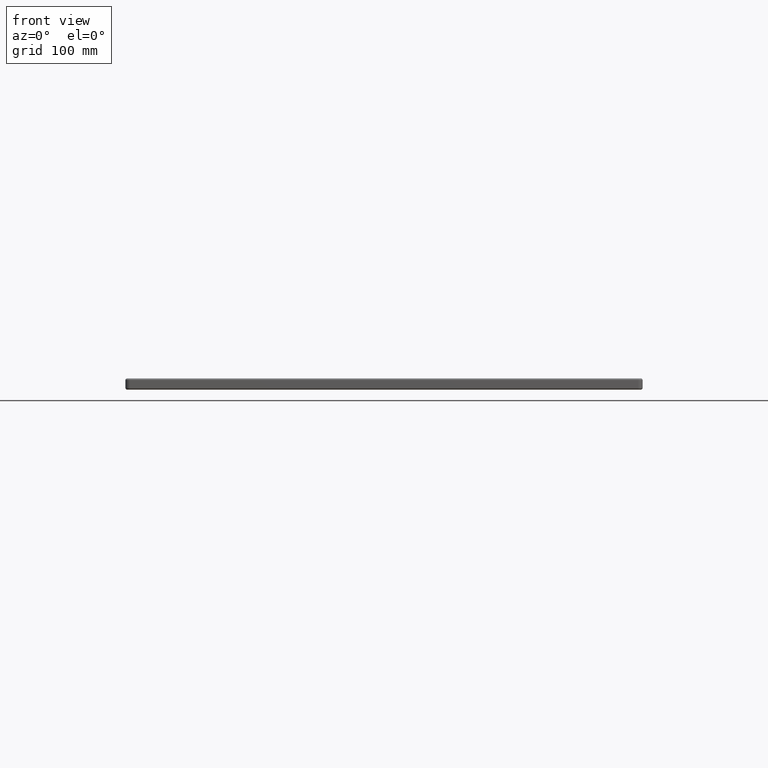
[diagram: clean part render]
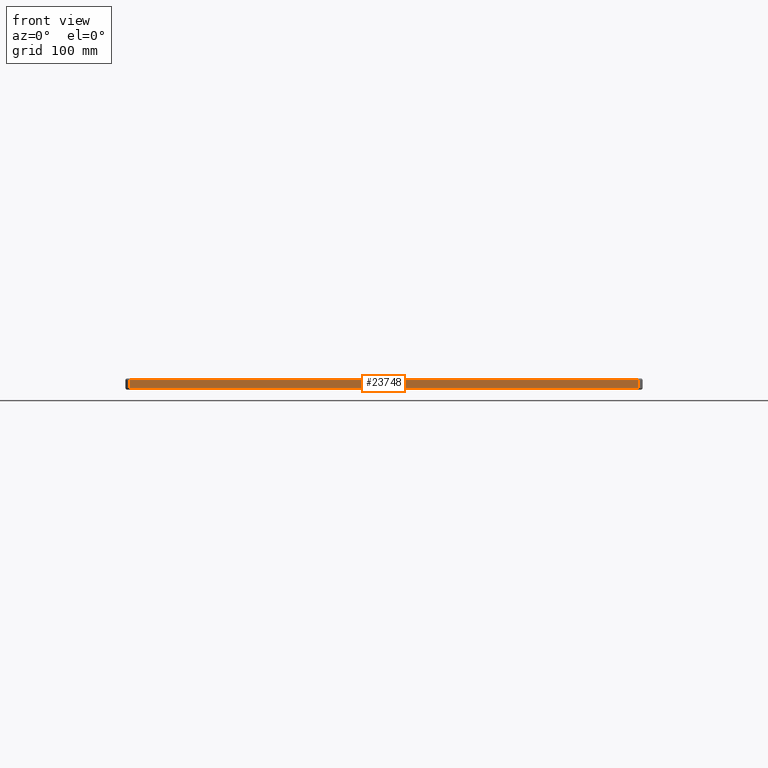
[diagram: same view with one face highlighted and labeled with its STEP entity id]
A machine part, front view. The second image highlights one B-rep face of the part: STEP entity #23748.
In plain terms, the highlighted planar face has unit normal (0, -1, 0).
Its self-contained STEP definition (entity closure, byte-faithful):
#1167 = CARTESIAN_POINT ( 'NONE',  ( 4.999999999999999100, 0.0000000000000000000, -2.000000000000000000 ) ) ;
#1573 = EDGE_LOOP ( 'NONE', ( #19054, #6155, #22933, #33698 ) ) ;
#1578 = EDGE_CURVE ( 'NONE', #31903, #32944, #15941, .T. ) ;
#1705 = EDGE_CURVE ( 'NONE', #9750, #39597, #17916, .T. ) ;
#1807 = DIRECTION ( 'NONE',  ( 1.000000000000000000, 0.0000000000000000000, 0.0000000000000000000 ) ) ;
#2936 = VECTOR ( 'NONE', #10214, 1000.000000000000000 ) ;
#3917 = CARTESIAN_POINT ( 'NONE',  ( 4.999999999999999100, 0.0000000000000000000, -13.00000000000000000 ) ) ;
#4591 = DIRECTION ( 'NONE',  ( -0.0000000000000000000, 0.0000000000000000000, 1.000000000000000000 ) ) ;
#6155 = ORIENTED_EDGE ( 'NONE', *, *, #1705, .T. ) ;
#8080 = EDGE_CURVE ( 'NONE', #39597, #31903, #24580, .T. ) ;
#8301 = CARTESIAN_POINT ( 'NONE',  ( 594.9999999999998900, 0.0000000000000000000, -13.00000000000000000 ) ) ;
#9750 = VERTEX_POINT ( 'NONE', #27207 ) ;
#10214 = DIRECTION ( 'NONE',  ( -0.0000000000000000000, -0.0000000000000000000, -1.000000000000000000 ) ) ;
#12214 = DIRECTION ( 'NONE',  ( 0.0000000000000000000, -1.000000000000000000, 0.0000000000000000000 ) ) ;
#13971 = CARTESIAN_POINT ( 'NONE',  ( 0.0000000000000000000, 0.0000000000000000000, -13.00000000000000000 ) ) ;
#14100 = CARTESIAN_POINT ( 'NONE',  ( 594.9999999999998900, 0.0000000000000000000, -11.00000000000000000 ) ) ;
#14742 = VECTOR ( 'NONE', #4591, 1000.000000000000000 ) ;
#15452 = VECTOR ( 'NONE', #19675, 1000.000000000000000 ) ;
#15941 = LINE ( 'NONE', #38273, #15452 ) ;
#17001 = EDGE_CURVE ( 'NONE', #32944, #9750, #20630, .T. ) ;
#17916 = LINE ( 'NONE', #20608, #37619 ) ;
#18380 = FACE_OUTER_BOUND ( 'NONE', #1573, .T. ) ;
#19054 = ORIENTED_EDGE ( 'NONE', *, *, #17001, .T. ) ;
#19675 = DIRECTION ( 'NONE',  ( -1.000000000000000000, -0.0000000000000000000, 0.0000000000000000000 ) ) ;
#20608 = CARTESIAN_POINT ( 'NONE',  ( 0.0000000000000000000, 0.0000000000000000000, -11.00000000000000000 ) ) ;
#20630 = LINE ( 'NONE', #3917, #2936 ) ;
#22933 = ORIENTED_EDGE ( 'NONE', *, *, #8080, .T. ) ;
#22961 = PLANE ( 'NONE',  #33266 ) ;
#23748 = ADVANCED_FACE ( 'NONE', ( #18380 ), #22961, .T. ) ;
#24580 = LINE ( 'NONE', #8301, #14742 ) ;
#27203 = CARTESIAN_POINT ( 'NONE',  ( 594.9999999999998900, 0.0000000000000000000, -2.000000000000000000 ) ) ;
#27207 = CARTESIAN_POINT ( 'NONE',  ( 4.999999999999999100, 0.0000000000000000000, -11.00000000000000000 ) ) ;
#31903 = VERTEX_POINT ( 'NONE', #27203 ) ;
#32944 = VERTEX_POINT ( 'NONE', #1167 ) ;
#33266 = AXIS2_PLACEMENT_3D ( 'NONE', #13971, #12214, #36756 ) ;
#33698 = ORIENTED_EDGE ( 'NONE', *, *, #1578, .T. ) ;
#36756 = DIRECTION ( 'NONE',  ( 0.0000000000000000000, -0.0000000000000000000, -1.000000000000000000 ) ) ;
#37619 = VECTOR ( 'NONE', #1807, 1000.000000000000000 ) ;
#38273 = CARTESIAN_POINT ( 'NONE',  ( 4.999999999999999100, 0.0000000000000000000, -2.000000000000000000 ) ) ;
#39597 = VERTEX_POINT ( 'NONE', #14100 ) ;